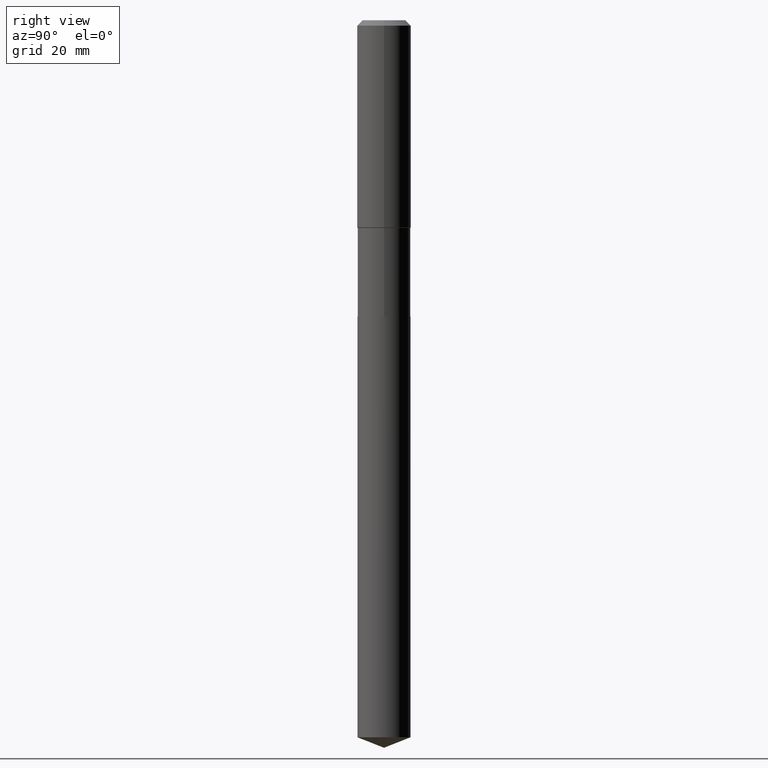
[diagram: clean part render]
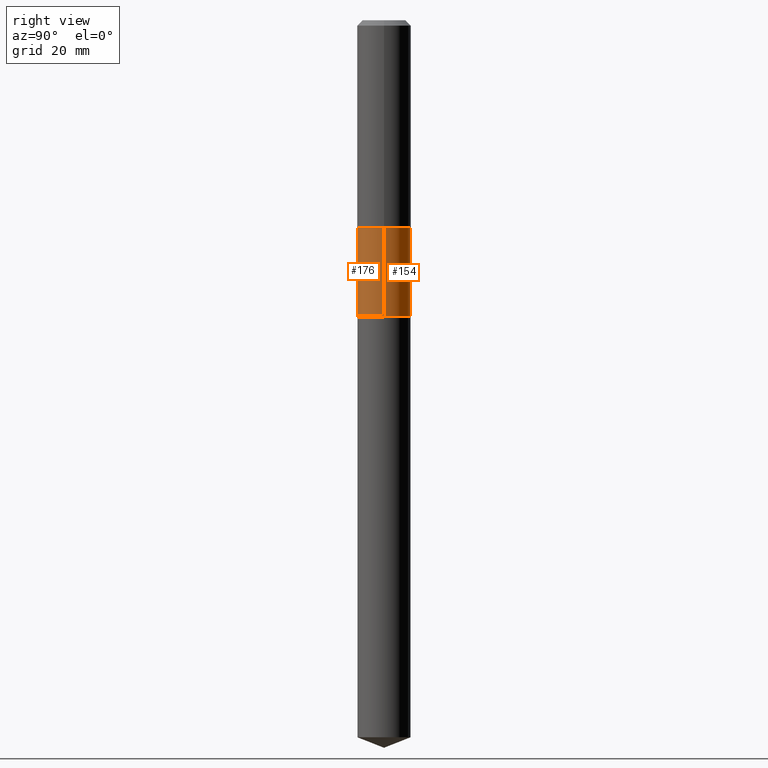
[diagram: same view with one multi-face feature highlighted, each face labeled with its STEP entity id]
A machine part, right view. The highlighted faces form ONE feature: a constant-radius fillet chain: 2 tangent blend faces with common blend radius 5.9004 mm. The faces share edges in the B-rep.
Their STEP definitions:
[1] entity #176 (Cylinder):
#12 = FACE_OUTER_BOUND ( 'NONE', #188, .T. ) ;
#13 = CARTESIAN_POINT ( 'NONE',  ( -0.2323000000000000065, -6.061916928266857861E-15, -2.597900000000000542 ) ) ;
#38 = EDGE_CURVE ( 'NONE', #483, #189, #251, .T. ) ;
#41 = DIRECTION ( 'NONE',  ( -2.445468806185136877E-29, 3.491481338843145188E-15, 1.000000000000000000 ) ) ;
#77 = DIRECTION ( 'NONE',  ( 1.000000000000000000, -6.982962677686265922E-15, 0.000000000000000000 ) ) ;
#82 = LINE ( 'NONE', #85, #488 ) ;
#85 = CARTESIAN_POINT ( 'NONE',  ( -0.2322999999999999510, 1.650590775170712383E-15, -1.142668621466214426E-29 ) ) ;
#118 = CARTESIAN_POINT ( 'NONE',  ( 4.450753227256950983E-29, -6.354496036694527792E-15, -1.820000000000000728 ) ) ;
#125 = EDGE_CURVE ( 'NONE', #153, #140, #327, .T. ) ;
#126 = CARTESIAN_POINT ( 'NONE',  ( -0.2322999999999998955, -6.061916928266857861E-15, -1.820000000000000728 ) ) ;
#139 = EDGE_CURVE ( 'NONE', #189, #140, #382, .T. ) ;
#140 = VERTEX_POINT ( 'NONE', #345 ) ;
#153 = VERTEX_POINT ( 'NONE', #126 ) ;
#161 = AXIS2_PLACEMENT_3D ( 'NONE', #118, #218, #461 ) ;
#166 = ORIENTED_EDGE ( 'NONE', *, *, #38, .T. ) ;
#176 = ADVANCED_FACE ( 'NONE', ( #12 ), #439, .T. ) ;
#184 = ORIENTED_EDGE ( 'NONE', *, *, #458, .F. ) ;
#188 = EDGE_LOOP ( 'NONE', ( #184, #166, #320, #452 ) ) ;
#189 = VERTEX_POINT ( 'NONE', #341 ) ;
#206 = CARTESIAN_POINT ( 'NONE',  ( 0.2322999999999999510, -1.622142230026519492E-15, 1.132735865017395539E-29 ) ) ;
#218 = DIRECTION ( 'NONE',  ( -2.445468806185136597E-29, 3.491481338843145583E-15, 1.000000000000000000 ) ) ;
#233 = DIRECTION ( 'NONE',  ( 1.000000000000000000, -6.982962677686266711E-15, 4.876176775795935232E-29 ) ) ;
#251 = CIRCLE ( 'NONE', #337, 0.2323000000000000065 ) ;
#257 = DIRECTION ( 'NONE',  ( -2.445468806185136597E-29, 3.491481338843145583E-15, 1.000000000000000000 ) ) ;
#273 = DIRECTION ( 'NONE',  ( -2.445468806185136877E-29, 3.491481338843145188E-15, 1.000000000000000000 ) ) ;
#296 = AXIS2_PLACEMENT_3D ( 'NONE', #435, #441, #233 ) ;
#320 = ORIENTED_EDGE ( 'NONE', *, *, #139, .T. ) ;
#327 = CIRCLE ( 'NONE', #161, 0.2322999999999998955 ) ;
#337 = AXIS2_PLACEMENT_3D ( 'NONE', #422, #257, #77 ) ;
#341 = CARTESIAN_POINT ( 'NONE',  ( 0.2323000000000000065, -1.069266160020713140E-14, -2.597900000000000542 ) ) ;
#345 = CARTESIAN_POINT ( 'NONE',  ( 0.2322999999999998955, -7.976638266721048073E-15, -1.820000000000000728 ) ) ;
#346 = VECTOR ( 'NONE', #273, 39.37007874015748143 ) ;
#382 = LINE ( 'NONE', #206, #346 ) ;
#422 = CARTESIAN_POINT ( 'NONE',  ( 6.353083411588368076E-29, -9.070519370180611907E-15, -2.597900000000000542 ) ) ;
#435 = CARTESIAN_POINT ( 'NONE',  ( 0.000000000000000000, 0.000000000000000000, 0.000000000000000000 ) ) ;
#439 = CYLINDRICAL_SURFACE ( 'NONE', #296, 0.2322999999999999510 ) ;
#441 = DIRECTION ( 'NONE',  ( -2.445468806185136597E-29, 3.491481338843145583E-15, 1.000000000000000000 ) ) ;
#452 = ORIENTED_EDGE ( 'NONE', *, *, #125, .F. ) ;
#458 = EDGE_CURVE ( 'NONE', #483, #153, #82, .T. ) ;
#461 = DIRECTION ( 'NONE',  ( 1.000000000000000000, -6.982962677686269866E-15, 0.000000000000000000 ) ) ;
#483 = VERTEX_POINT ( 'NONE', #13 ) ;
#488 = VECTOR ( 'NONE', #41, 39.37007874015748143 ) ;
[2] entity #154 (Cylinder):
#1 = ORIENTED_EDGE ( 'NONE', *, *, #306, .F. ) ;
#13 = CARTESIAN_POINT ( 'NONE',  ( -0.2323000000000000065, -6.061916928266857861E-15, -2.597900000000000542 ) ) ;
#21 = CARTESIAN_POINT ( 'NONE',  ( 6.353083411588368076E-29, -9.070519370180611907E-15, -2.597900000000000542 ) ) ;
#30 = CARTESIAN_POINT ( 'NONE',  ( 4.450753227256950983E-29, -6.354496036694527792E-15, -1.820000000000000728 ) ) ;
#41 = DIRECTION ( 'NONE',  ( -2.445468806185136877E-29, 3.491481338843145188E-15, 1.000000000000000000 ) ) ;
#82 = LINE ( 'NONE', #85, #488 ) ;
#85 = CARTESIAN_POINT ( 'NONE',  ( -0.2322999999999999510, 1.650590775170712383E-15, -1.142668621466214426E-29 ) ) ;
#126 = CARTESIAN_POINT ( 'NONE',  ( -0.2322999999999998955, -6.061916928266857861E-15, -1.820000000000000728 ) ) ;
#139 = EDGE_CURVE ( 'NONE', #189, #140, #382, .T. ) ;
#140 = VERTEX_POINT ( 'NONE', #345 ) ;
#153 = VERTEX_POINT ( 'NONE', #126 ) ;
#154 = ADVANCED_FACE ( 'NONE', ( #348 ), #199, .T. ) ;
#189 = VERTEX_POINT ( 'NONE', #341 ) ;
#199 = CYLINDRICAL_SURFACE ( 'NONE', #223, 0.2322999999999999510 ) ;
#206 = CARTESIAN_POINT ( 'NONE',  ( 0.2322999999999999510, -1.622142230026519492E-15, 1.132735865017395539E-29 ) ) ;
#214 = CIRCLE ( 'NONE', #278, 0.2323000000000000065 ) ;
#223 = AXIS2_PLACEMENT_3D ( 'NONE', #309, #270, #344 ) ;
#270 = DIRECTION ( 'NONE',  ( -2.445468806185136597E-29, 3.491481338843145583E-15, 1.000000000000000000 ) ) ;
#273 = DIRECTION ( 'NONE',  ( -2.445468806185136877E-29, 3.491481338843145188E-15, 1.000000000000000000 ) ) ;
#278 = AXIS2_PLACEMENT_3D ( 'NONE', #21, #360, #318 ) ;
#280 = EDGE_CURVE ( 'NONE', #189, #483, #214, .T. ) ;
#282 = DIRECTION ( 'NONE',  ( 1.000000000000000000, -6.982962677686269866E-15, 0.000000000000000000 ) ) ;
#291 = EDGE_LOOP ( 'NONE', ( #418, #326, #1, #293 ) ) ;
#293 = ORIENTED_EDGE ( 'NONE', *, *, #139, .F. ) ;
#306 = EDGE_CURVE ( 'NONE', #140, #153, #387, .T. ) ;
#309 = CARTESIAN_POINT ( 'NONE',  ( 0.000000000000000000, 0.000000000000000000, 0.000000000000000000 ) ) ;
#318 = DIRECTION ( 'NONE',  ( 1.000000000000000000, -6.982962677686265922E-15, 0.000000000000000000 ) ) ;
#323 = DIRECTION ( 'NONE',  ( -2.445468806185136597E-29, 3.491481338843145583E-15, 1.000000000000000000 ) ) ;
#326 = ORIENTED_EDGE ( 'NONE', *, *, #458, .T. ) ;
#328 = AXIS2_PLACEMENT_3D ( 'NONE', #30, #323, #282 ) ;
#341 = CARTESIAN_POINT ( 'NONE',  ( 0.2323000000000000065, -1.069266160020713140E-14, -2.597900000000000542 ) ) ;
#344 = DIRECTION ( 'NONE',  ( 1.000000000000000000, -6.982962677686266711E-15, 4.876176775795935232E-29 ) ) ;
#345 = CARTESIAN_POINT ( 'NONE',  ( 0.2322999999999998955, -7.976638266721048073E-15, -1.820000000000000728 ) ) ;
#346 = VECTOR ( 'NONE', #273, 39.37007874015748143 ) ;
#348 = FACE_OUTER_BOUND ( 'NONE', #291, .T. ) ;
#360 = DIRECTION ( 'NONE',  ( -2.445468806185136597E-29, 3.491481338843145583E-15, 1.000000000000000000 ) ) ;
#382 = LINE ( 'NONE', #206, #346 ) ;
#387 = CIRCLE ( 'NONE', #328, 0.2322999999999998955 ) ;
#418 = ORIENTED_EDGE ( 'NONE', *, *, #280, .T. ) ;
#458 = EDGE_CURVE ( 'NONE', #483, #153, #82, .T. ) ;
#483 = VERTEX_POINT ( 'NONE', #13 ) ;
#488 = VECTOR ( 'NONE', #41, 39.37007874015748143 ) ;